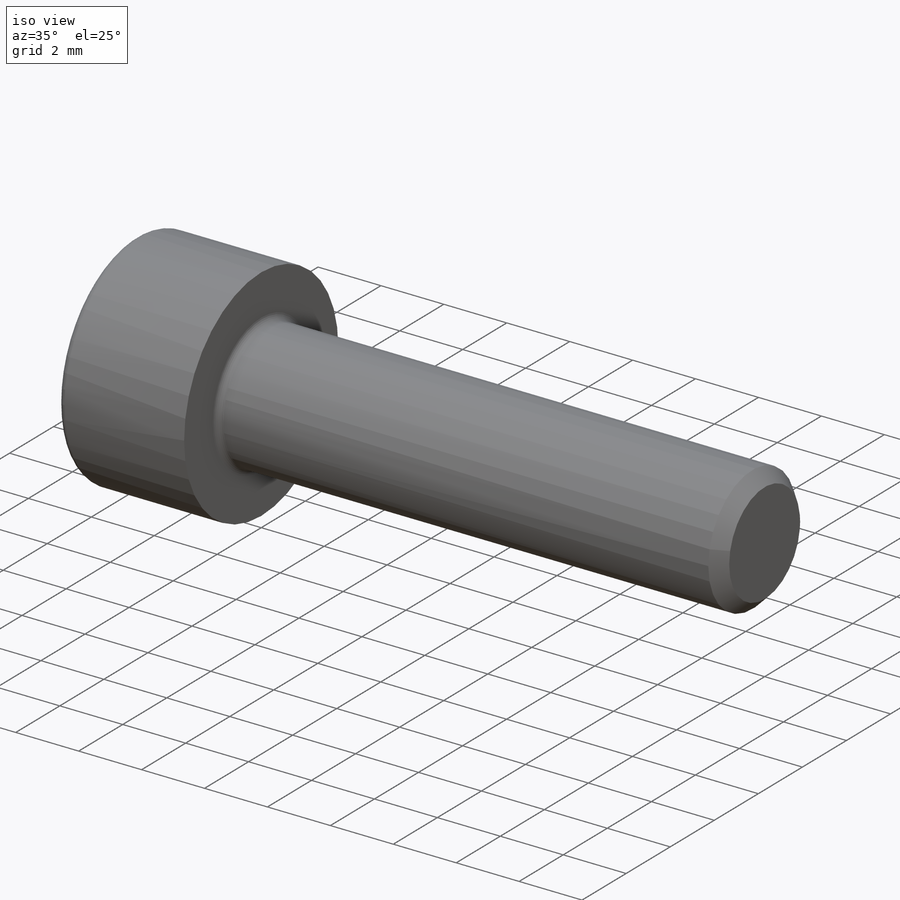
[diagram: iso view]
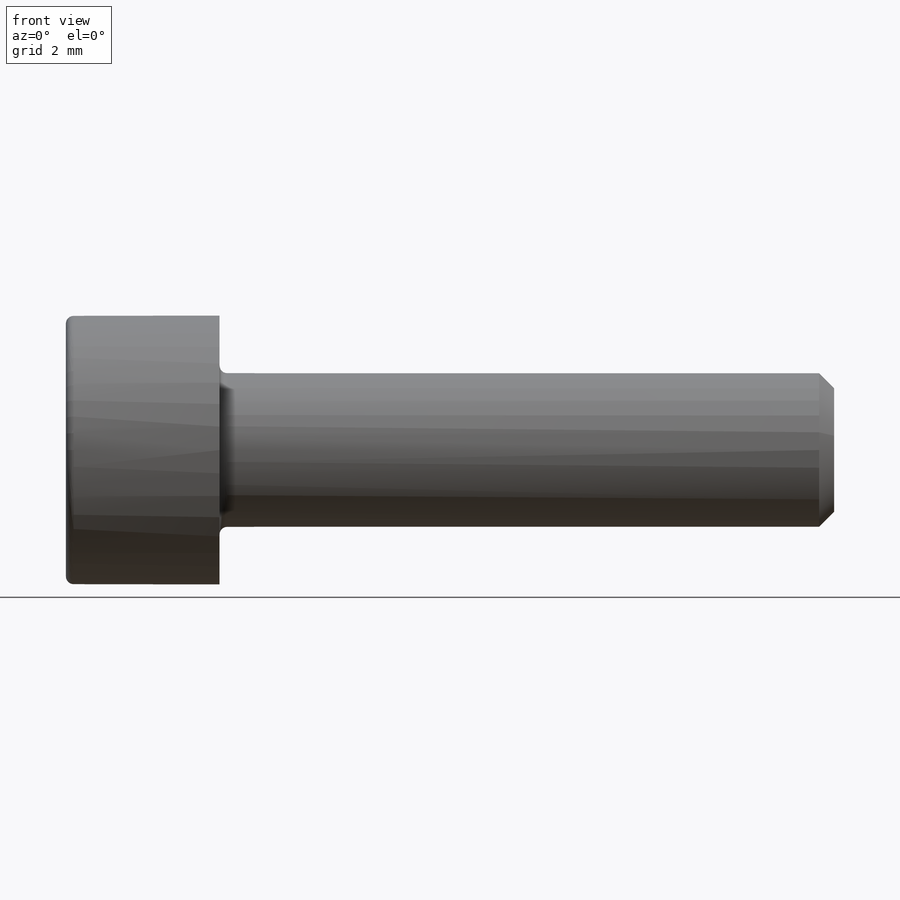
[diagram: front view]
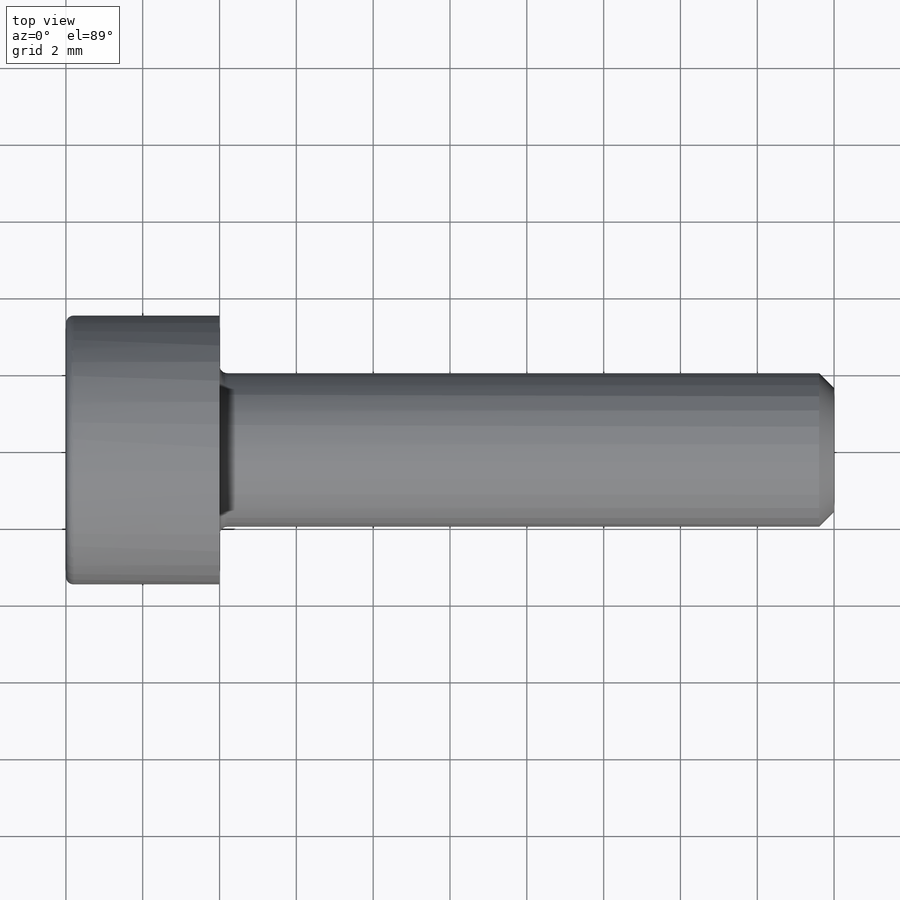
[diagram: top view]
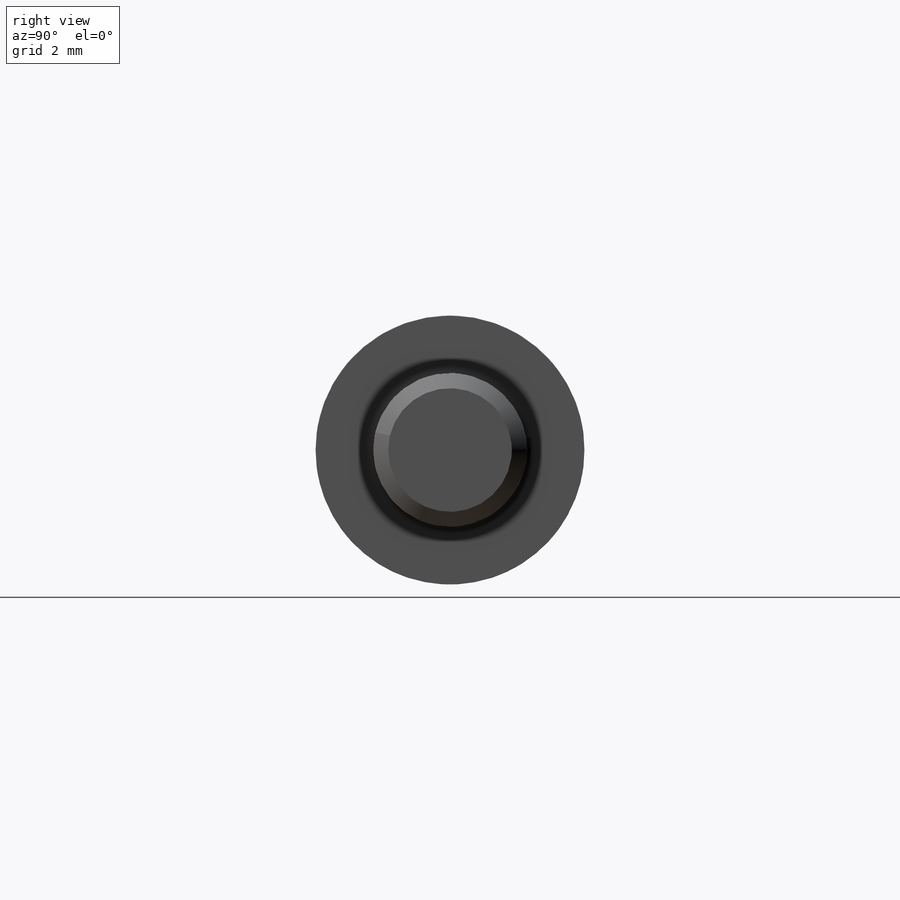
[diagram: right view]
SOLIDWORKS PART (.sldprt)
format: sldprt  version: not decoded by parser v0  size: 191,488 bytes
history: native  units: mm
features: plane x4, sketch x4, material x1, revolve x1, extrude x1, cut_extrude x1, cut_revolve x1, chamfer x1, fillet x1 (+10 scaffold rows collapsed)
feature tree (25):
  scaffold x10  (default folders/planes/origin — collapsed)
  material  "AISI 4340 Aço recozido"
  plane  "Plano frontal"
  plane  "Plano superior"
  plane  "Plano direito"
  plane  "Plano1"
  sketch  "Esboço1"
  revolve  "Revolução1"  Angle=360deg
  sketch  "Esboço2"
  extrude  "Ressalto-extrusão1"  Depth=16mm
  sketch  "Esboço3"
  cut_extrude  "Corte-extrusão1"  Depth=2mm
  sketch  "Esboço4"
  cut_revolve  "Corte-Revolução1"  Angle=360deg
  chamfer  "Chanfro1"  Distance=0.39mm Angle=45deg
  fillet  "Filete1"  Radius=0.2mm
decode coverage: 6 of 10 modeling features carry decoded parameters
note: suppression state not decoded; provenance and decode notes live in map.json
